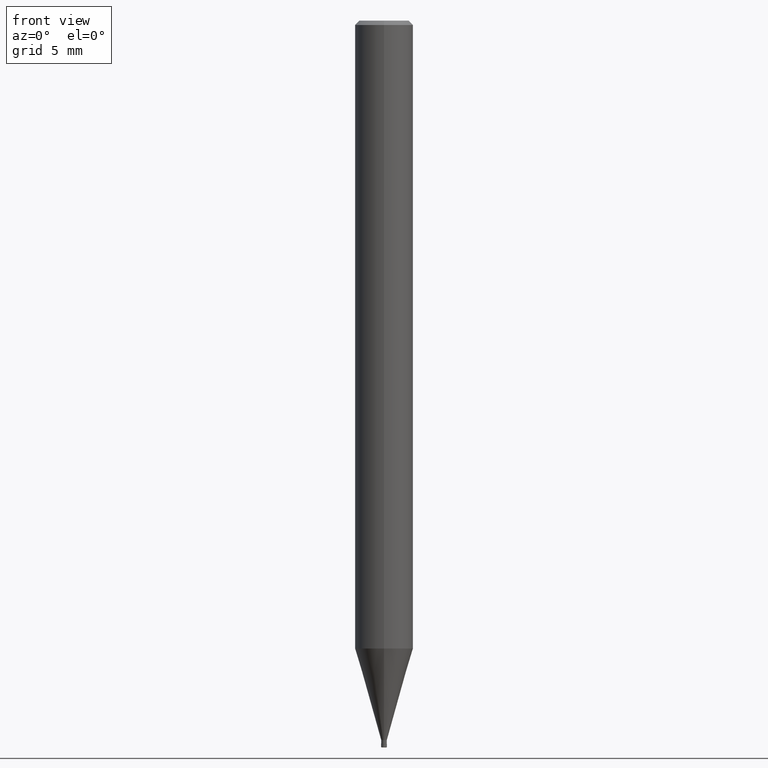
[diagram: clean part render]
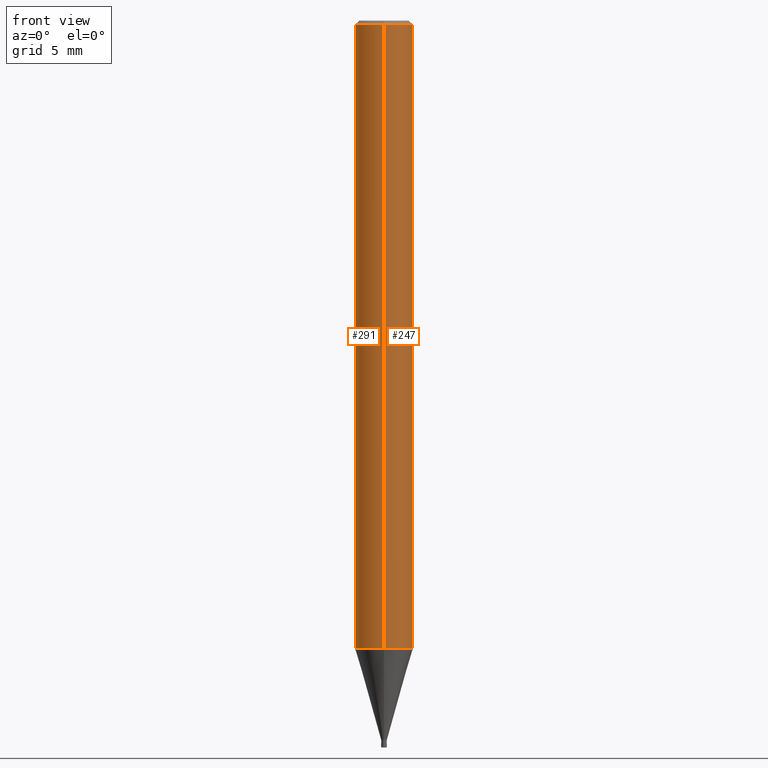
[diagram: same view with one multi-face feature highlighted, each face labeled with its STEP entity id]
A machine part, front view. The highlighted faces form ONE feature: a constant-radius fillet chain: 2 tangent blend faces with common blend radius 2 mm. The faces share edges in the B-rep.
Their STEP definitions:
[1] entity #247 (Cylinder):
#153=EDGE_CURVE('',#281,#257,#389,.T.);
#171=VERTEX_POINT('',#412);
#209=EDGE_CURVE('',#347,#257,#455,.T.);
#229=EDGE_CURVE('',#281,#171,#478,.T.);
#247=ADVANCED_FACE('',(#499),#500,.T.);
#257=VERTEX_POINT('',#510);
#281=VERTEX_POINT('',#535);
#325=EDGE_CURVE('',#171,#347,#584,.T.);
#347=VERTEX_POINT('',#610);
#389=CIRCLE('',#650,2.0);
#412=CARTESIAN_POINT('',(0.0,2.0,-43.186));
#455=LINE('',#733,#734);
#478=LINE('',#763,#764);
#499=FACE_OUTER_BOUND('',#787,.T.);
#500=CYLINDRICAL_SURFACE('',#788,2.0);
#510=CARTESIAN_POINT('',(2.44921270764475E-016,-2.0,-0.289999999999999));
#535=CARTESIAN_POINT('',(0.0,2.0,-0.289999999999999));
#584=CIRCLE('',#893,2.0);
#610=CARTESIAN_POINT('',(2.44921270764475E-016,-2.0,-43.186));
#650=AXIS2_PLACEMENT_3D('',#962,#963,#964);
#733=CARTESIAN_POINT('',(2.44921270764475E-016,-2.0,-21.738));
#734=VECTOR('',#1058,1.0);
#763=CARTESIAN_POINT('',(-2.44921270764475E-016,2.0,-21.738));
#764=VECTOR('',#1098,1.0);
#787=EDGE_LOOP('',(#1130,#1131,#1132,#1133));
#788=AXIS2_PLACEMENT_3D('',#1134,#1135,#1136);
#893=AXIS2_PLACEMENT_3D('',#1225,#1226,#1227);
#962=CARTESIAN_POINT('',(0.0,0.0,-0.289999999999999));
#963=DIRECTION('',(0.0,0.0,-1.0));
#964=DIRECTION('',(0.0,1.0,0.0));
#1058=DIRECTION('',(-0.0,-0.0,1.0));
#1098=DIRECTION('',(0.0,0.0,-1.0));
#1130=ORIENTED_EDGE('',*,*,#229,.F.);
#1131=ORIENTED_EDGE('',*,*,#153,.T.);
#1132=ORIENTED_EDGE('',*,*,#209,.F.);
#1133=ORIENTED_EDGE('',*,*,#325,.F.);
#1134=CARTESIAN_POINT('',(0.0,0.0,-21.738));
#1135=DIRECTION('',(-0.0,-0.0,1.0));
#1136=DIRECTION('',(0.0,1.0,0.0));
#1225=CARTESIAN_POINT('',(0.0,0.0,-43.186));
#1226=DIRECTION('',(0.0,0.0,-1.0));
#1227=DIRECTION('',(0.0,1.0,0.0));
[2] entity #291 (Cylinder):
#167=EDGE_CURVE('',#347,#171,#407,.T.);
#171=VERTEX_POINT('',#412);
#209=EDGE_CURVE('',#347,#257,#455,.T.);
#229=EDGE_CURVE('',#281,#171,#478,.T.);
#257=VERTEX_POINT('',#510);
#271=EDGE_CURVE('',#257,#281,#525,.T.);
#281=VERTEX_POINT('',#535);
#291=ADVANCED_FACE('',(#545),#546,.T.);
#347=VERTEX_POINT('',#610);
#407=CIRCLE('',#674,2.0);
#412=CARTESIAN_POINT('',(0.0,2.0,-43.186));
#455=LINE('',#733,#734);
#478=LINE('',#763,#764);
#510=CARTESIAN_POINT('',(2.44921270764475E-016,-2.0,-0.289999999999999));
#525=CIRCLE('',#822,2.0);
#535=CARTESIAN_POINT('',(0.0,2.0,-0.289999999999999));
#545=FACE_OUTER_BOUND('',#846,.T.);
#546=CYLINDRICAL_SURFACE('',#847,2.0);
#610=CARTESIAN_POINT('',(2.44921270764475E-016,-2.0,-43.186));
#674=AXIS2_PLACEMENT_3D('',#992,#993,#994);
#733=CARTESIAN_POINT('',(2.44921270764475E-016,-2.0,-21.738));
#734=VECTOR('',#1058,1.0);
#763=CARTESIAN_POINT('',(-2.44921270764475E-016,2.0,-21.738));
#764=VECTOR('',#1098,1.0);
#822=AXIS2_PLACEMENT_3D('',#1159,#1160,#1161);
#846=EDGE_LOOP('',(#1174,#1175,#1176,#1177));
#847=AXIS2_PLACEMENT_3D('',#1178,#1179,#1180);
#992=CARTESIAN_POINT('',(0.0,0.0,-43.186));
#993=DIRECTION('',(0.0,0.0,-1.0));
#994=DIRECTION('',(0.0,1.0,0.0));
#1058=DIRECTION('',(-0.0,-0.0,1.0));
#1098=DIRECTION('',(0.0,0.0,-1.0));
#1159=CARTESIAN_POINT('',(0.0,0.0,-0.289999999999999));
#1160=DIRECTION('',(0.0,0.0,-1.0));
#1161=DIRECTION('',(0.0,1.0,0.0));
#1174=ORIENTED_EDGE('',*,*,#229,.T.);
#1175=ORIENTED_EDGE('',*,*,#167,.F.);
#1176=ORIENTED_EDGE('',*,*,#209,.T.);
#1177=ORIENTED_EDGE('',*,*,#271,.T.);
#1178=CARTESIAN_POINT('',(0.0,0.0,-21.738));
#1179=DIRECTION('',(-0.0,-0.0,1.0));
#1180=DIRECTION('',(0.0,1.0,0.0));